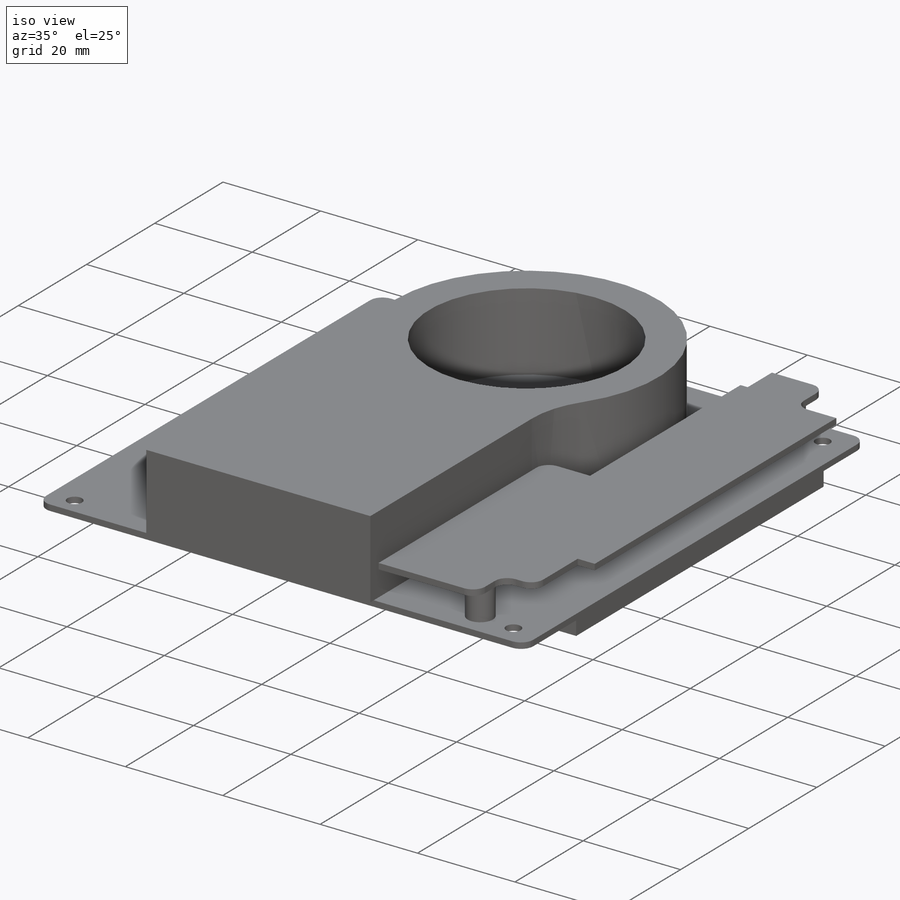
[diagram: iso view]
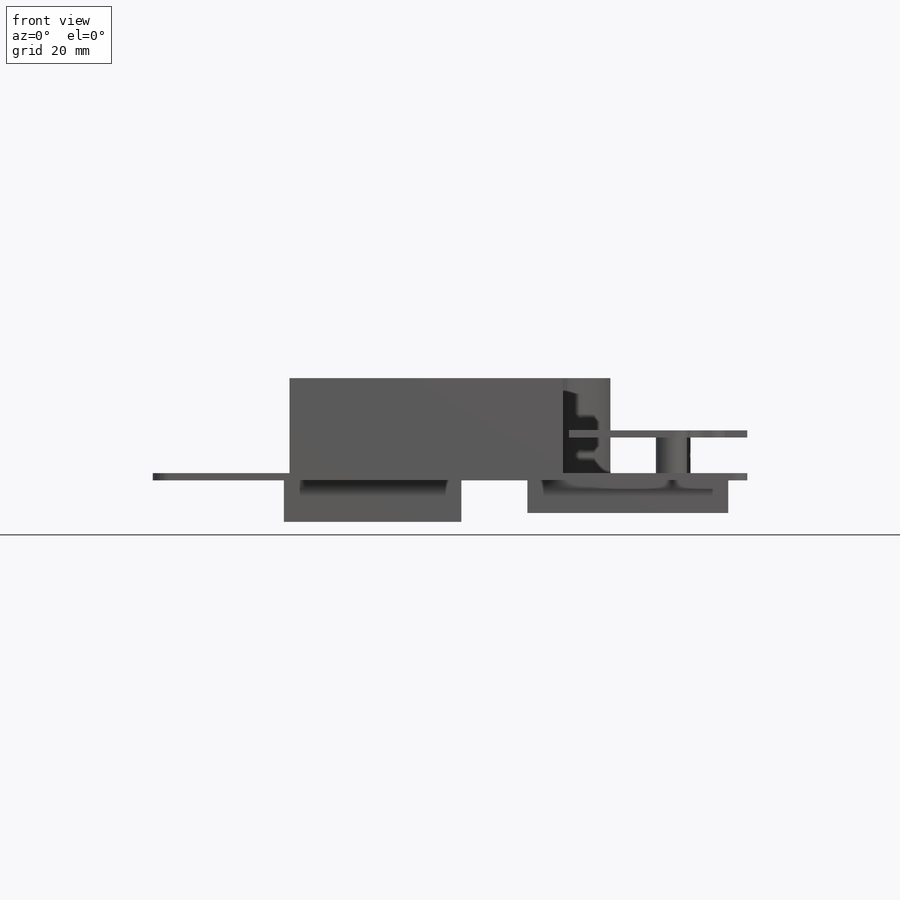
[diagram: front view]
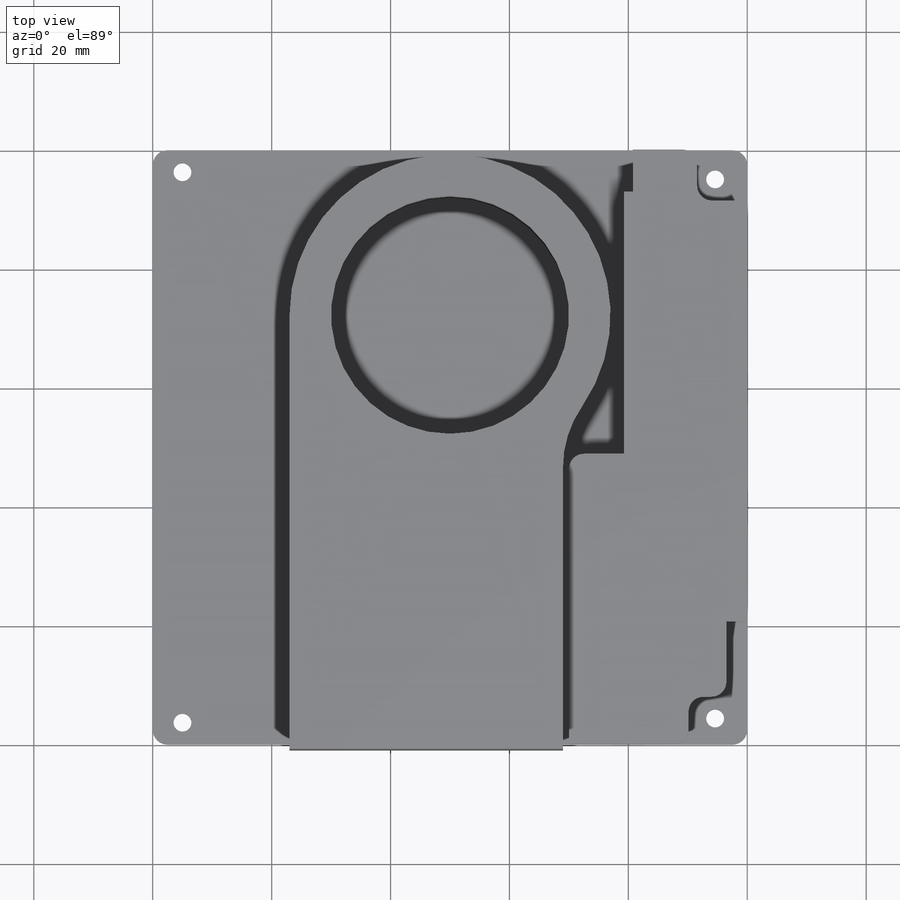
[diagram: top view]
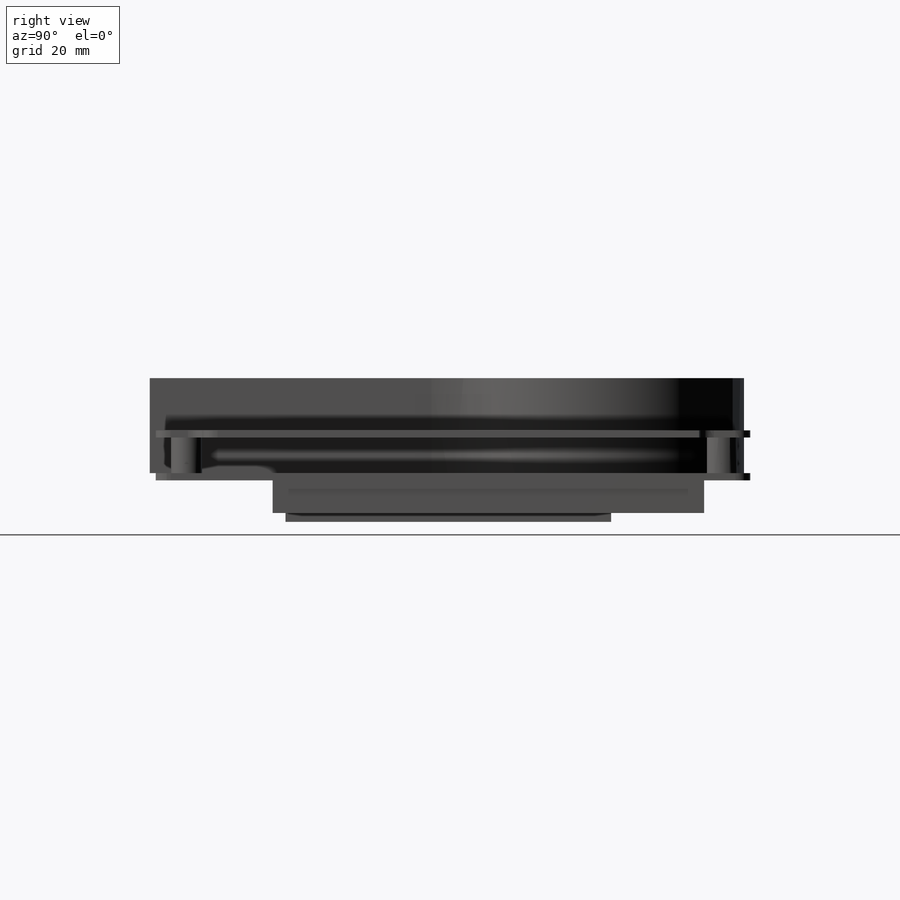
[diagram: right view]
SOLIDWORKS PART (.sldprt)
format: sldprt  version: not decoded by parser v0  size: 8,442,880 bytes
history: native  units: mm
features: sketch x6, extrude x6, material x1, fillet x1 (+11 scaffold rows collapsed)
feature tree (25):
  scaffold x11  (default folders/planes/origin — collapsed)
  material  "Material <not specified>"
  sketch  "Sketch1"  dims[c1.D1=3.0mm c1.D12=2.5mm c2.D1=10.0mm c2.D2=100.0mm c2.D3=100.0mm c2.D4=3.7mm c2.D5=5.0mm c2.D6=5.0mm c2.D7=~5.911093mm c3.D7=90.0deg c4.D7=3.7mm c4.D8=4.9mm c4.D9=5.4mm c4.D10=5.4mm c4.D11=4.4mm]
  extrude  "Boss-Extrude1"  Depth=1.2mm
  sketch  "Sketch2"
  extrude  "Boss-Extrude2"  Depth=7mm
  sketch  "Sketch3"
  extrude  "Boss-Extrude3"  Depth=5.5mm
  sketch  "Sketch4"  dims[D6=18.0mm D7=40.0mm D1=1.0mm D2=46.0mm D3=23.0mm D4=72.0mm D5=27.0mm]
  extrude  "Boss-Extrude4"  Depth=16mm
  sketch  "Sketch5"  dims[D1=5.2mm]
  extrude  "Boss-Extrude5"  Depth=6mm
  sketch  "Sketch6"
  extrude  "Boss-Extrude6"  Depth=1.2mm
  fillet  "Fillet1"  Radius=2.5mm
decode coverage: 10 of 13 modeling features carry decoded parameters
note: ~ marks probable driven/reference dimensions
note: suppression state not decoded; provenance and decode notes live in map.json
